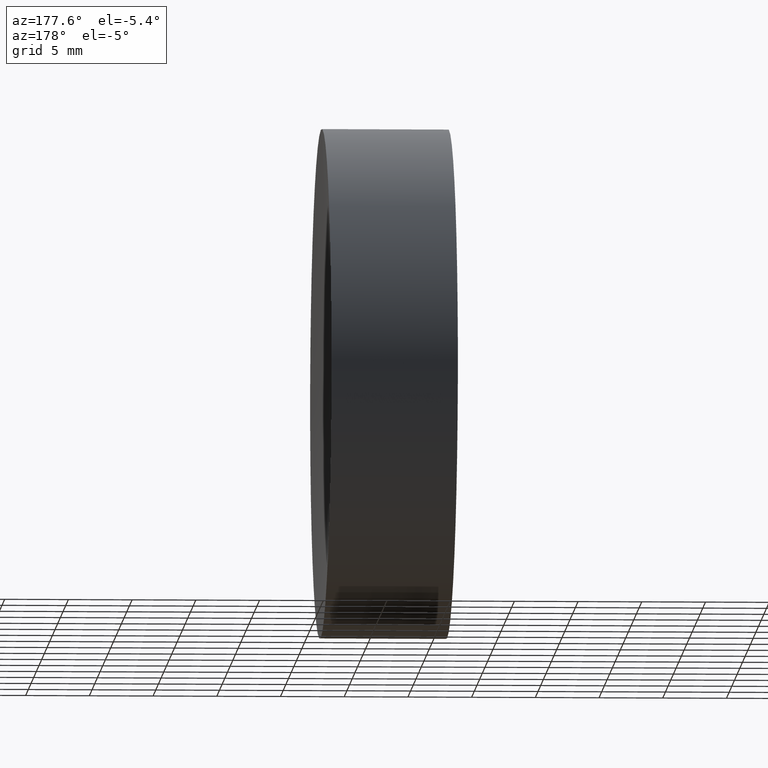
[diagram: clean part render]
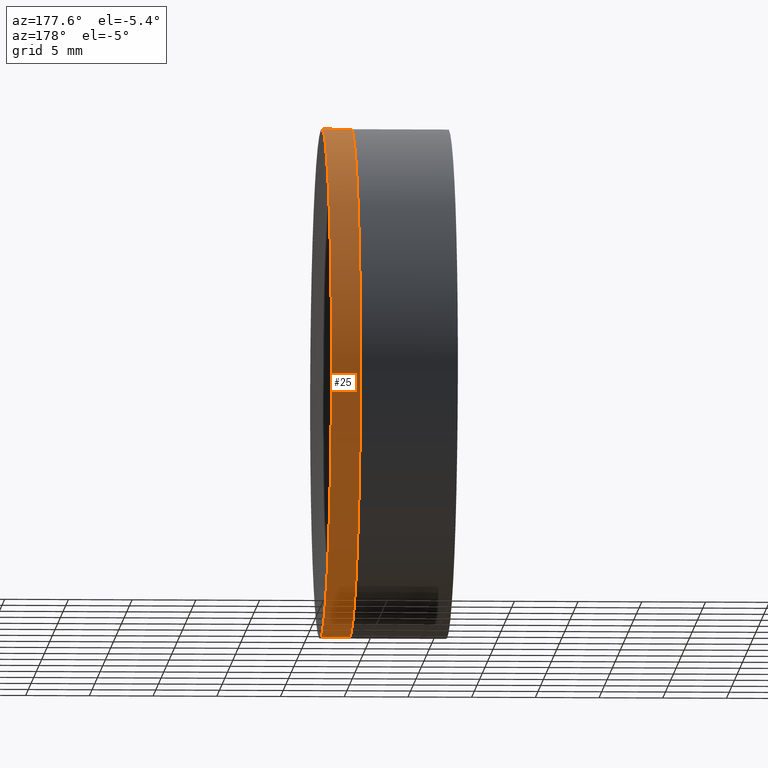
[diagram: same view with one face highlighted and labeled with its STEP entity id]
A machine part, auxiliary view. The second image highlights one B-rep face of the part: STEP entity #25.
In plain terms, the highlighted cylindrical surface (partial cylindrical patch) has radius 20 mm, axis along (-1, -0, -0).
Its self-contained STEP definition (entity closure, byte-faithful):
#1 = CARTESIAN_POINT ( 'NONE',  ( 253.5119500822572400, 0.0000000000000000000, 19.99999999999999600 ) ) ;
#4 = VERTEX_POINT ( 'NONE', #159 ) ;
#19 = ORIENTED_EDGE ( 'NONE', *, *, #108, .F. ) ;
#21 = DIRECTION ( 'NONE',  ( -1.000000000000000000, -0.0000000000000000000, -0.0000000000000000000 ) ) ;
#25 = ADVANCED_FACE ( 'NONE', ( #37 ), #204, .T. ) ;
#28 = CIRCLE ( 'NONE', #263, 20.00000000000000400 ) ;
#31 = LINE ( 'NONE', #316, #282 ) ;
#32 = EDGE_CURVE ( 'NONE', #318, #257, #139, .T. ) ;
#37 = FACE_OUTER_BOUND ( 'NONE', #45, .T. ) ;
#45 = EDGE_LOOP ( 'NONE', ( #305, #177, #19, #205 ) ) ;
#53 = EDGE_CURVE ( 'NONE', #257, #4, #137, .T. ) ;
#58 = CARTESIAN_POINT ( 'NONE',  ( 251.2286233649336100, -2.449293598294704100E-015, 19.99999999999998200 ) ) ;
#74 = VECTOR ( 'NONE', #102, 1000.000000000000000 ) ;
#102 = DIRECTION ( 'NONE',  ( -1.000000000000000000, -0.0000000000000000000, -0.0000000000000000000 ) ) ;
#108 = EDGE_CURVE ( 'NONE', #197, #4, #28, .T. ) ;
#123 = DIRECTION ( 'NONE',  ( -1.000000000000000000, -0.0000000000000000000, -0.0000000000000000000 ) ) ;
#130 = CARTESIAN_POINT ( 'NONE',  ( 243.5932381383219400, 0.0000000000000000000, 0.0000000000000000000 ) ) ;
#137 = LINE ( 'NONE', #142, #74 ) ;
#139 = CIRCLE ( 'NONE', #326, 19.99999999999999600 ) ;
#142 = CARTESIAN_POINT ( 'NONE',  ( 243.5932381383219400, 2.449293598294706500E-015, -20.00000000000000000 ) ) ;
#154 = CARTESIAN_POINT ( 'NONE',  ( 251.2286233649336100, 0.0000000000000000000, 0.0000000000000000000 ) ) ;
#159 = CARTESIAN_POINT ( 'NONE',  ( 251.2286233649336100, 0.0000000000000000000, -19.99999999999998200 ) ) ;
#162 = AXIS2_PLACEMENT_3D ( 'NONE', #130, #211, #322 ) ;
#177 = ORIENTED_EDGE ( 'NONE', *, *, #53, .T. ) ;
#184 = CARTESIAN_POINT ( 'NONE',  ( 253.5119500822572400, 0.0000000000000000000, 0.0000000000000000000 ) ) ;
#187 = CARTESIAN_POINT ( 'NONE',  ( 253.5119500822572400, 2.449293598294706500E-015, -19.99999999999999600 ) ) ;
#197 = VERTEX_POINT ( 'NONE', #58 ) ;
#204 = CYLINDRICAL_SURFACE ( 'NONE', #162, 20.00000000000000000 ) ;
#205 = ORIENTED_EDGE ( 'NONE', *, *, #237, .F. ) ;
#211 = DIRECTION ( 'NONE',  ( -1.000000000000000000, -0.0000000000000000000, -0.0000000000000000000 ) ) ;
#226 = DIRECTION ( 'NONE',  ( 0.0000000000000000000, 0.0000000000000000000, 1.000000000000000000 ) ) ;
#237 = EDGE_CURVE ( 'NONE', #318, #197, #31, .T. ) ;
#257 = VERTEX_POINT ( 'NONE', #187 ) ;
#263 = AXIS2_PLACEMENT_3D ( 'NONE', #154, #342, #293 ) ;
#282 = VECTOR ( 'NONE', #123, 1000.000000000000000 ) ;
#293 = DIRECTION ( 'NONE',  ( 0.0000000000000000000, 0.0000000000000000000, 1.000000000000000000 ) ) ;
#305 = ORIENTED_EDGE ( 'NONE', *, *, #32, .T. ) ;
#316 = CARTESIAN_POINT ( 'NONE',  ( 243.5932381383219400, 0.0000000000000000000, 20.00000000000000000 ) ) ;
#318 = VERTEX_POINT ( 'NONE', #1 ) ;
#322 = DIRECTION ( 'NONE',  ( 0.0000000000000000000, 0.0000000000000000000, 1.000000000000000000 ) ) ;
#326 = AXIS2_PLACEMENT_3D ( 'NONE', #184, #21, #226 ) ;
#342 = DIRECTION ( 'NONE',  ( -1.000000000000000000, -0.0000000000000000000, -0.0000000000000000000 ) ) ;